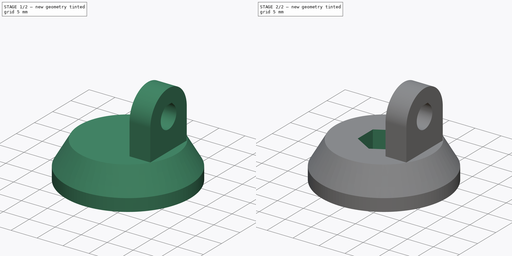
[diagram: build sequence overview — one tinted view per stage of 2, left to right]
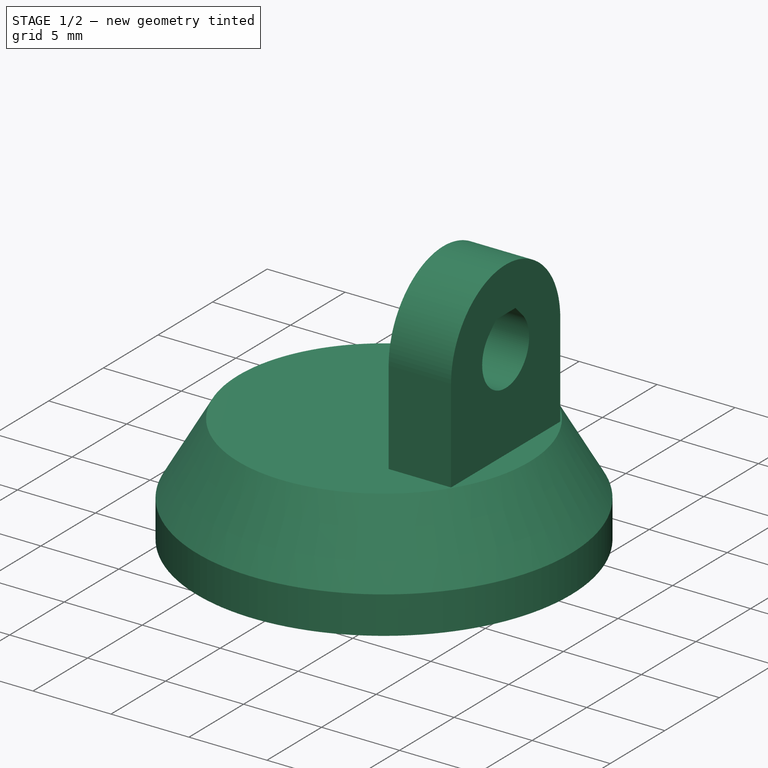
[diagram: stage 1 of 2 — iso view after this stage's code; geometry added in this stage tinted green]
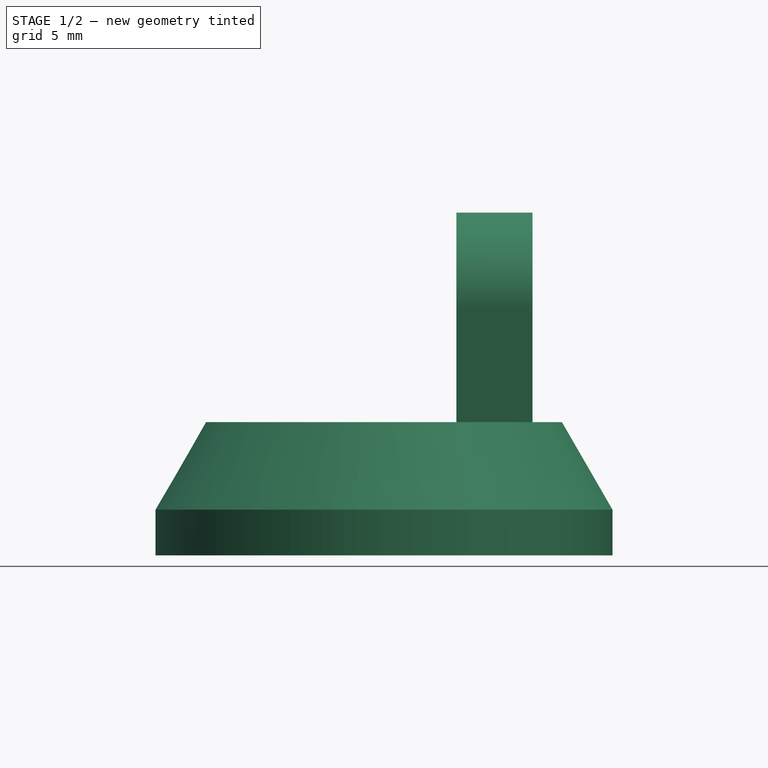
[diagram: stage 1 of 2 — front view after this stage's code; geometry added in this stage tinted green]
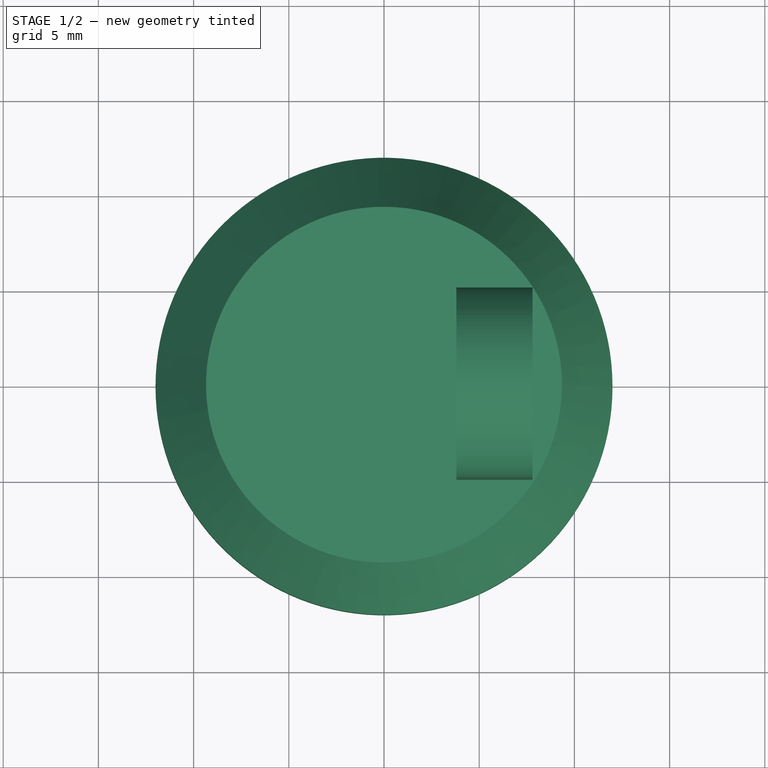
[diagram: stage 1 of 2 — top view after this stage's code; geometry added in this stage tinted green]
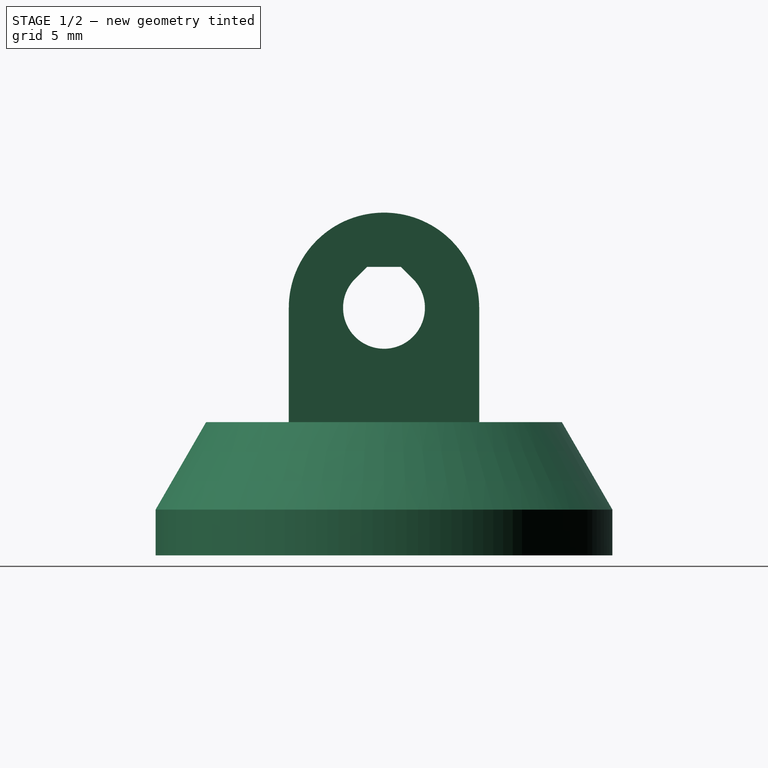
[diagram: stage 1 of 2 — right view after this stage's code; geometry added in this stage tinted green]
FCSTD DOCUMENT  (FreeCAD 0.20R29177 +426 (Git))
Label: SensorMountPivot
License: All rights reserved
LicenseURL: http://en.wikipedia.org/wiki/All_rights_reserved
objects: Sketcher::SketchObject×4, App::DocumentObjectGroup×3, PartDesign::CoordinateSystem×3, PartDesign::Pocket×2, PartDesign::Revolution×1, PartDesign::Pad×1, App::FeaturePython×1, PartDesign::Body×1, App::Part×1
note: 16 computed .brp shape members not serialized (recipe doc carries the construction recipe); baked Part::Feature solids carry a one-line shape summary decoded from their .brp

FEATURE [Sketcher::SketchObject] Sketch
  FullyConstrained = true
  MapMode = 5
  Placement = pos=(0,0,0) rot=(1,0,0;1.5708rad)
  Support = -> [XZ_Plane]
  expr: Constraints[7] = <<Variables>>.BaseHeight
  sketch-geometry (5):
    g0: LineSegment StartX=0 StartY=0 StartZ=0 EndX=9.34419 EndY=0 EndZ=0
    g1: LineSegment StartX=9.34419 StartY=0 StartZ=0 EndX=12 EndY=-4.6 EndZ=0
    g2: LineSegment StartX=12 StartY=-7 StartZ=0 EndX=0 EndY=-7 EndZ=0
    g3: LineSegment StartX=0 StartY=-7 StartZ=0 EndX=0 EndY=0 EndZ=0
    g4: LineSegment StartX=12 StartY=-4.6 StartZ=0 EndX=12 EndY=-7 EndZ=0
  constraints (14):
    c: Coincident(g-1,g0)
    c: PointOnObject(g0,g-1)
    c: Coincident(g0,g1)
    c: PointOnObject(g2,g-2)
    c: Horizontal(g2)
    c: Coincident(g2,g3)
    c: Coincident(g3,g0)
    c: DistanceY(g3,g3) = 7
    c: Angle(g-1,g1) = 2.0944
    c: Vertical(g4)
    c: DistanceY(g4,g4) = 2.4
    c: Coincident(g4,g2)
    c: Coincident(g1,g4)
    c: DistanceX(g2,g2) = 12
FEATURE [PartDesign::Revolution] Revolution  label="Base"
  Angle = 360
  Axis = (0,-2e-16,1)
  Base = (0,0,0)
  Placement = pos=(0,0,0) rot=(1,0,0;1.5708rad)
  Profile = -> Sketch
  ReferenceAxis = -> Sketch [V_Axis]
  Reversed = true
FEATURE [Sketcher::SketchObject] Sketch001
  FullyConstrained = true
  MapMode = 5
  Support = -> [XY_Plane]
  sketch-geometry (7):
    g0: LineSegment StartX=3.6 StartY=2.07846 StartZ=0 EndX=0 EndY=4.15692 EndZ=0
    g1: LineSegment StartX=0 StartY=4.15692 StartZ=0 EndX=-3.6 EndY=2.07846 EndZ=0
    g2: LineSegment StartX=-3.6 StartY=2.07846 StartZ=0 EndX=-3.6 EndY=-2.07846 EndZ=0
    g3: LineSegment StartX=-3.6 StartY=-2.07846 StartZ=0 EndX=-4e-16 EndY=-4.15692 EndZ=0
    g4: LineSegment StartX=-4e-16 StartY=-4.15692 StartZ=0 EndX=3.6 EndY=-2.07846 EndZ=0
    g5: LineSegment StartX=3.6 StartY=-2.07846 StartZ=0 EndX=3.6 EndY=2.07846 EndZ=0
    g6: Circle CenterX=0 CenterY=0 CenterZ=0 NormalX=0 NormalY=0 NormalZ=1 AngleXU=0 Radius=4.15692
  constraints (16):
    c: Coincident(g0,g1)
    c: Coincident(g1,g2)
    c: Coincident(g2,g3)
    c: Coincident(g3,g4)
    c: Coincident(g4,g5)
    c: Coincident(g5,g0)
    c: Equal(g0, g1-g5) x5
    c: PointOnObject(g0,g6)
    c: PointOnObject(g1,g6)
    c: PointOnObject(g2,g6)
    c: PointOnObject(g3,g6)
    c: PointOnObject(g4,g6)
    c: PointOnObject(g5,g6)
    c: Coincident(g6,g-1)
    c: PointOnObject(g0,g-2)
    c: DistanceX(g1,g0) = 7.2
FEATURE [Sketcher::SketchObject] Sketch002
  AttachmentOffset = pos=(0,0,3.8) rot=(0,0,1;0rad)
  FullyConstrained = true
  MapMode = 5
  Placement = pos=(3.8,-8e-16,8e-16) rot=(0.57735,0.57735,0.57735;2.0944rad)
  Support = -> [YZ_Plane]
  sketch-geometry (12):
    g0: ArcOfCircle CenterX=0 CenterY=6 CenterZ=0 NormalX=0 NormalY=0 NormalZ=1 AngleXU=0 Radius=5 StartAngle=0 EndAngle=3.14159
    g1: LineSegment StartX=-5 StartY=6 StartZ=0 EndX=-5 EndY=0 EndZ=0
    g2: LineSegment StartX=5 StartY=6 StartZ=0 EndX=5 EndY=0 EndZ=0
    g3: ArcOfCircle CenterX=0 CenterY=6 CenterZ=0 NormalX=0 NormalY=0 NormalZ=1 AngleXU=0 Radius=5 StartAngle=3.14159 EndAngle=6.28319
    g4: LineSegment StartX=0 StartY=0 StartZ=0 EndX=0 EndY=1 EndZ=0
    g5: LineSegment StartX=-5 StartY=0 StartZ=0 EndX=5 EndY=0 EndZ=0
    g6: LineSegment StartX=-1.52028 StartY=7.52028 StartZ=0 EndX=-0.890559 EndY=8.15 EndZ=0
    g7: LineSegment StartX=-0.890559 StartY=8.15 StartZ=0 EndX=0.890559 EndY=8.15 EndZ=0
    g8: LineSegment StartX=0.890559 StartY=8.15 StartZ=0 EndX=1.52028 EndY=7.52028 EndZ=0
    g9: ArcOfCircle CenterX=0 CenterY=6 CenterZ=0 NormalX=0 NormalY=0 NormalZ=1 AngleXU=0 Radius=2.15 StartAngle=0.785398 EndAngle=2.35619
    g10: ArcOfCircle CenterX=0 CenterY=6 CenterZ=0 NormalX=0 NormalY=0 NormalZ=1 AngleXU=0 Radius=2.15 StartAngle=2.35619 EndAngle=7.06858
    g11: LineSegment StartX=-1.52028 StartY=7.52028 StartZ=0 EndX=1.52028 EndY=7.52028 EndZ=0
  constraints (32):
    c: PointOnObject(g9,g-2)
    c: Coincident(g0,g9)
    c: PointOnObject(g1,g-1)
    c: PointOnObject(g2,g-1)
    c: Tangent(g1,g0) = -1.5708
    c: Diameter(g0) = 10
    c: Vertical(g1)
    c: Coincident(g3,g9)
    c: Coincident(g3,g0)
    c: Coincident(g3,g0)
    c: Tangent(g2,g0) = 1.5708
    c: Vertical(g2)
    c: Coincident(g4,g-1)
    c: PointOnObject(g4,g3)
    c: Vertical(g4)
    c: DistanceY(g4,g4) = 1
    c: Coincident(g5,g1)
    c: Coincident(g5,g2)
    c: Coincident(g7,g6)
    c: Horizontal(g7)
    c: Coincident(g8,g7)
    c: Coincident(g9,g10)
    c: Coincident(g9,g10)
    c: Diameter(g9) = 4.3
    c: Tangent(g10,g6) = 1.5708
    c: Coincident(g9,g8)
    c: Tangent(g10,g8) = 1.5708
    c: Coincident(g11,g6)
    c: Coincident(g11,g8)
    c: Horizontal(g11)
    c: Angle(g8,g11) = 0.785398
    c: Tangent(g7,g9)
FEATURE [PartDesign::Pad] Pad  label="BackPlateShoulder"
  BaseFeature = -> Revolution
  Direction = (1,-2e-16,3e-16)
  Length = 4
  Length2 = 10
  Placement = pos=(0,0,0) rot=(1,0,0;1.5708rad)
  Profile = -> Sketch002
  ReferenceAxis = -> Sketch002 [N_Axis]
  Type = 0
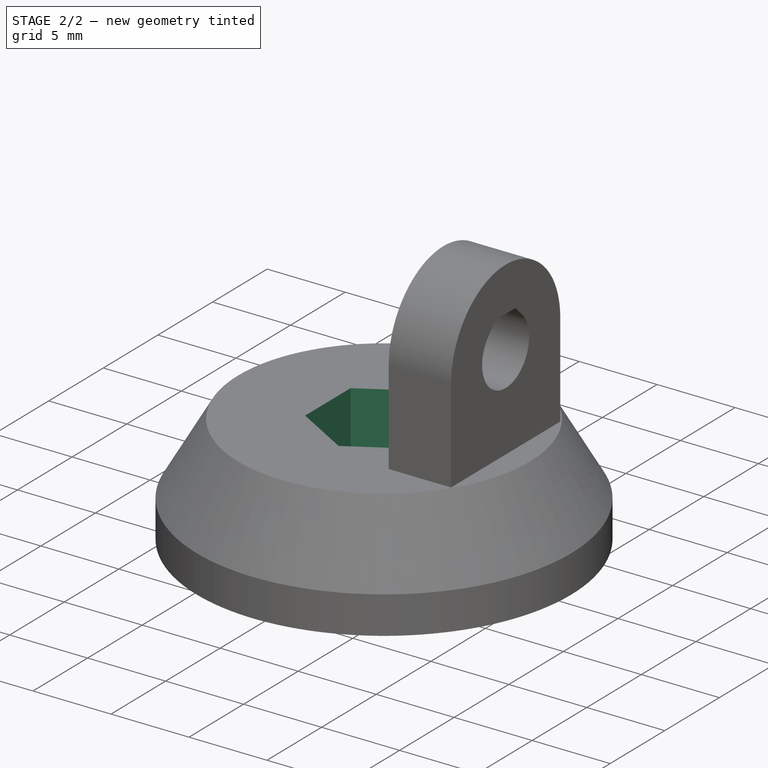
[diagram: stage 2 of 2 — iso view after this stage's code; geometry added in this stage tinted green]
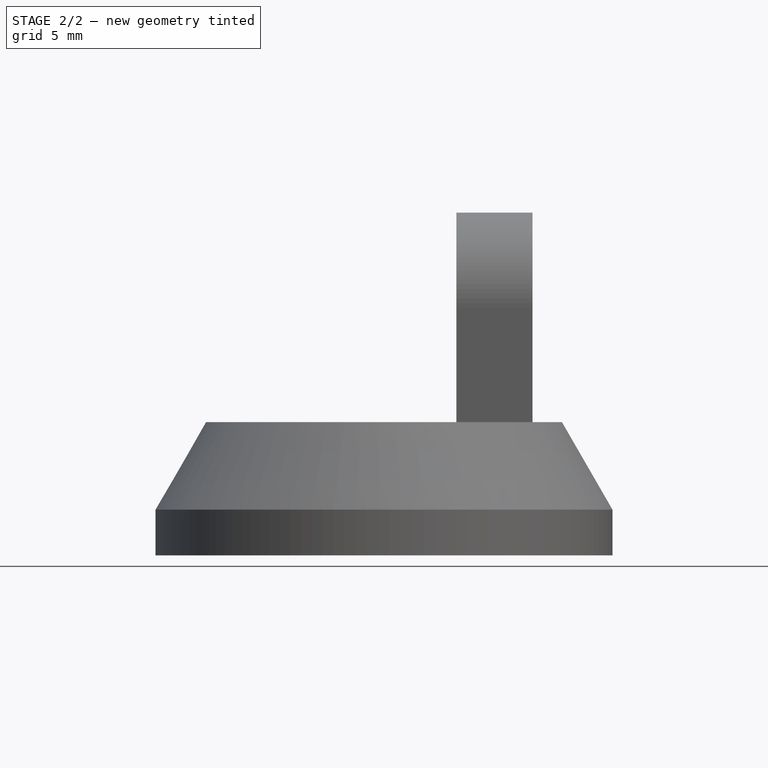
[diagram: stage 2 of 2 — front view after this stage's code; geometry added in this stage tinted green]
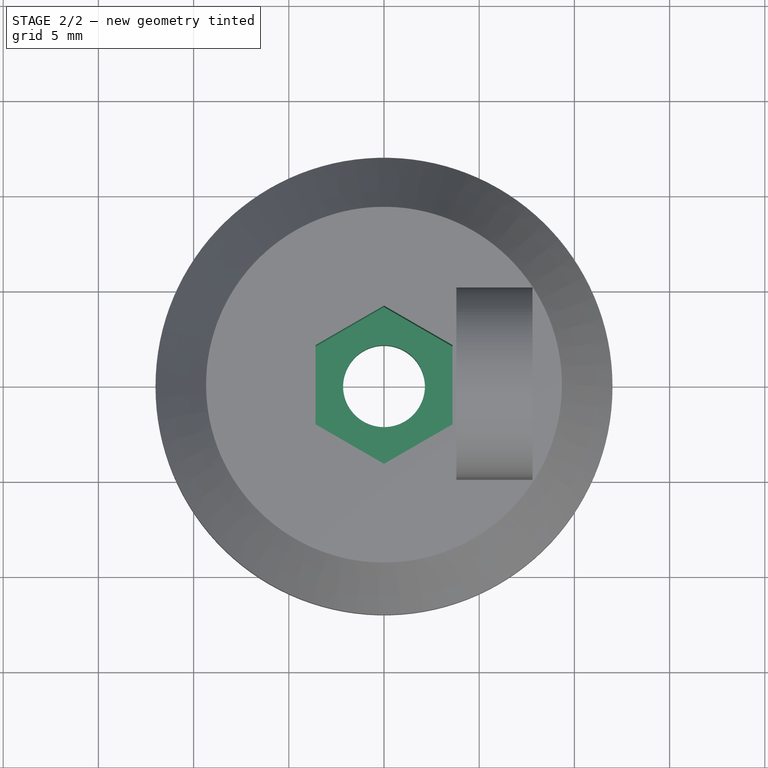
[diagram: stage 2 of 2 — top view after this stage's code; geometry added in this stage tinted green]
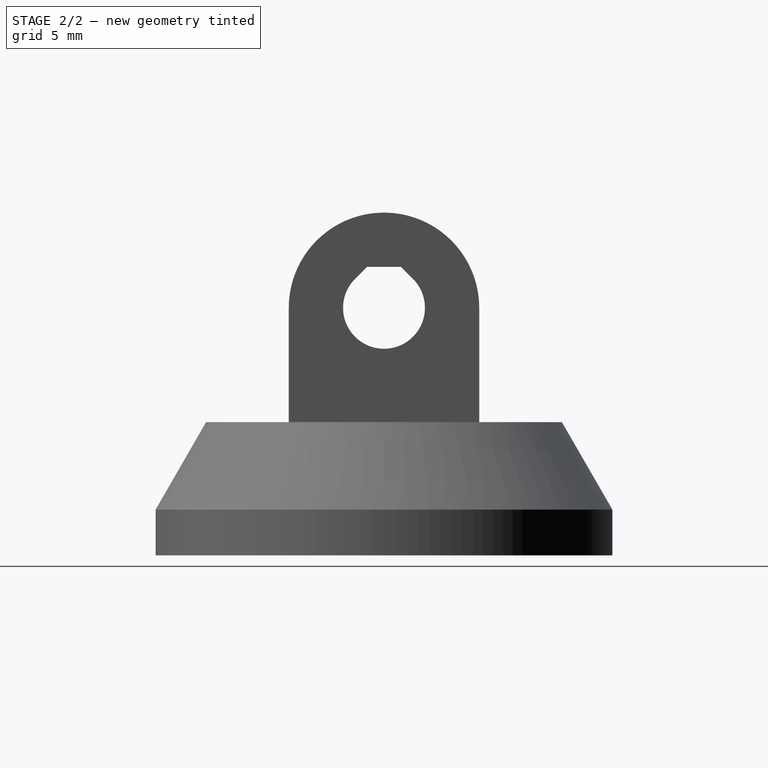
[diagram: stage 2 of 2 — right view after this stage's code; geometry added in this stage tinted green]
FEATURE [App::DocumentObjectGroup] Parts
FEATURE [PartDesign::CoordinateSystem] LCS_Origin
  AttacherType = Attacher::AttachEngine3D
  MapMode = 2
  Support = -> [X_Axis001]
FEATURE [App::DocumentObjectGroup] Constraints
FEATURE [App::FeaturePython] Variables  # WARN: FeaturePython — macro-defined, semantics opaque (R4)
  BaseHeight = 7
  Type = App::PropertyContainer
FEATURE [App::DocumentObjectGroup] Configurations
FEATURE [PartDesign::CoordinateSystem] LCS_Base
  AttacherType = Attacher::AttachEngine3D
  AttachmentOffset = pos=(0,0,-7) rot=(0,0,1;0rad)
  MapMode = 2
  Placement = pos=(0,0,-7) rot=(0,0,1;0rad)
  Support = -> [LCS_Origin]
  expr: .AttachmentOffset.Base.z = <<Variables>>.BaseHeight * -1
FEATURE [PartDesign::Pocket] Pocket  label="NutPocket"
  BaseFeature = -> Pad
  Direction = (0,0,-1)
  Length = 4.5
  Length2 = 5
  Placement = pos=(0,0,0) rot=(1,0,0;1.5708rad)
  Profile = -> Sketch001
  ReferenceAxis = -> Sketch001 [N_Axis]
  Type = 0
FEATURE [PartDesign::CoordinateSystem] LCS_BackPlateHole
  AttacherType = Attacher::AttachEngine3D
  MapMode = 11
  Placement = pos=(3.8,5e-16,6) rot=(-0.357407,0.862856,-0.357407;1.71777rad)
  Support = -> [Pocket]
FEATURE [Sketcher::SketchObject] Sketch003
  FullyConstrained = true
  MapMode = 5
  Support = -> [XY_Plane]
  sketch-geometry (1):
    g0: Circle CenterX=0 CenterY=0 CenterZ=0 NormalX=0 NormalY=0 NormalZ=1 AngleXU=0 Radius=2.15
  constraints (2):
    c: Coincident(g0,g-1)
    c: Diameter(g0) = 4.3
FEATURE [PartDesign::Pocket] Pocket001
  BaseFeature = -> Pocket
  Direction = (0,0,-1)
  Length = 5
  Length2 = 5
  Placement = pos=(0,0,0) rot=(1,0,0;1.5708rad)
  Profile = -> Sketch003
  ReferenceAxis = -> Sketch003 [N_Axis]
  Type = 1
FEATURE [PartDesign::Body] Body
  Group = -> [Sketch,Revolution,Sketch001,Sketch002,Pad,Pocket,Sketch003,Pocket001]
  Origin = -> Origin
  Tip = -> Pocket001
FEATURE [App::Part] Assembly
  AssemblyType = Part::Link
  Group = -> [LCS_Origin,Constraints,Variables,Configurations,Body,LCS_BackPlateHole,LCS_Base]
  Origin = -> Origin001
  Type = Assembly
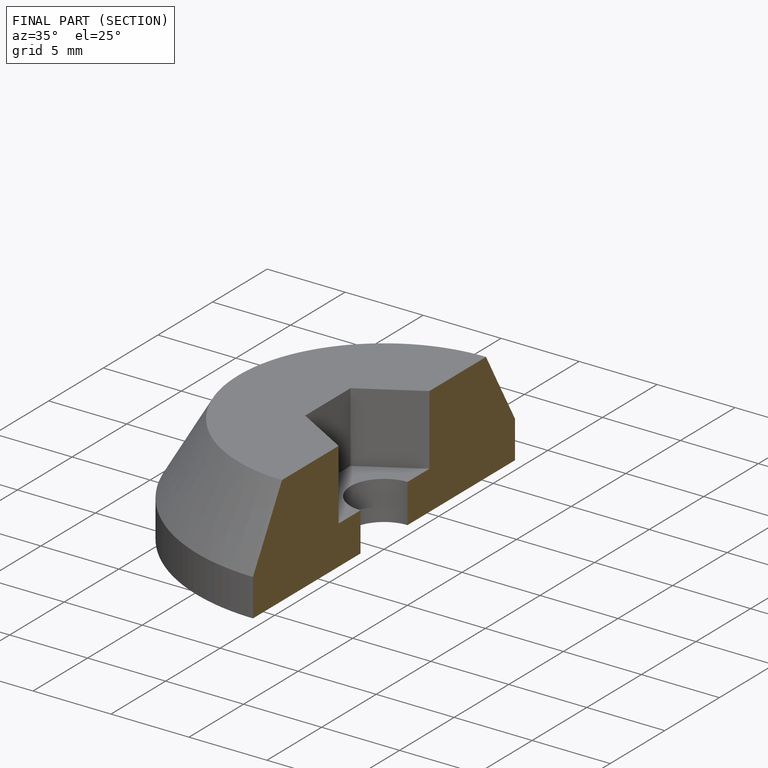
[diagram: finished part — half-section view (interior)]
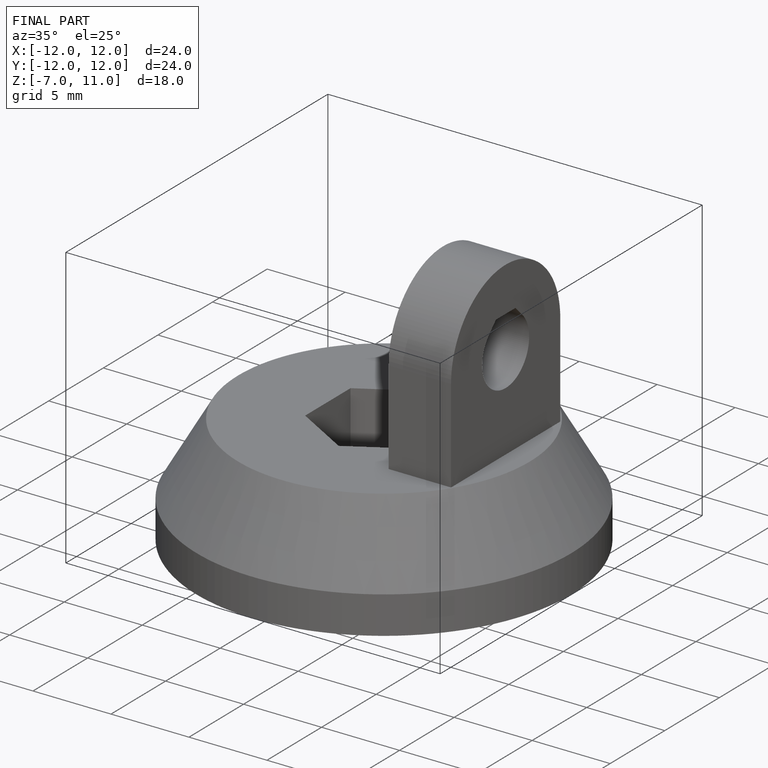
[diagram: finished part — iso view with bounding-box wireframe]
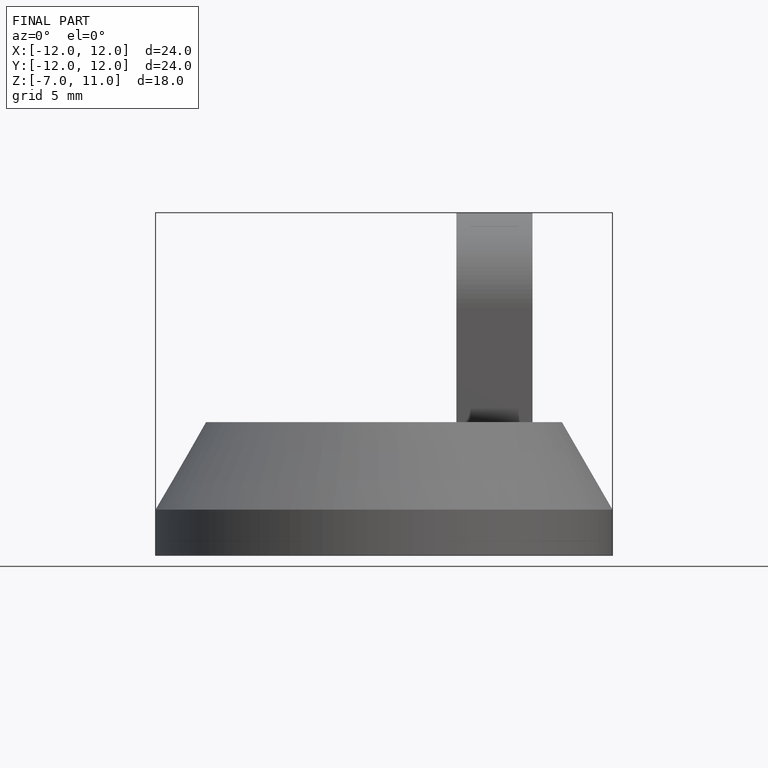
[diagram: finished part — front view with bounding-box wireframe]
